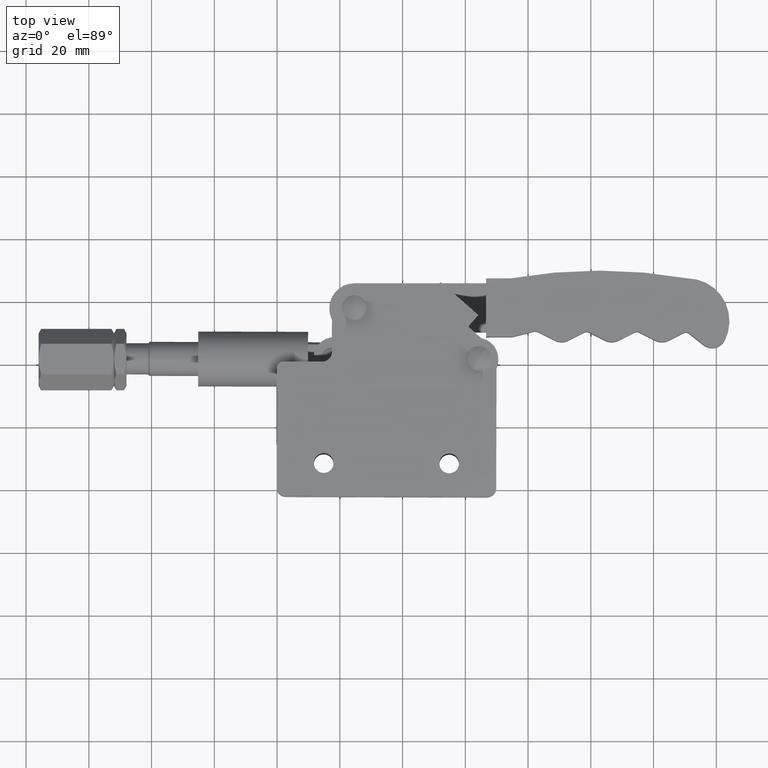
[diagram: clean part render]
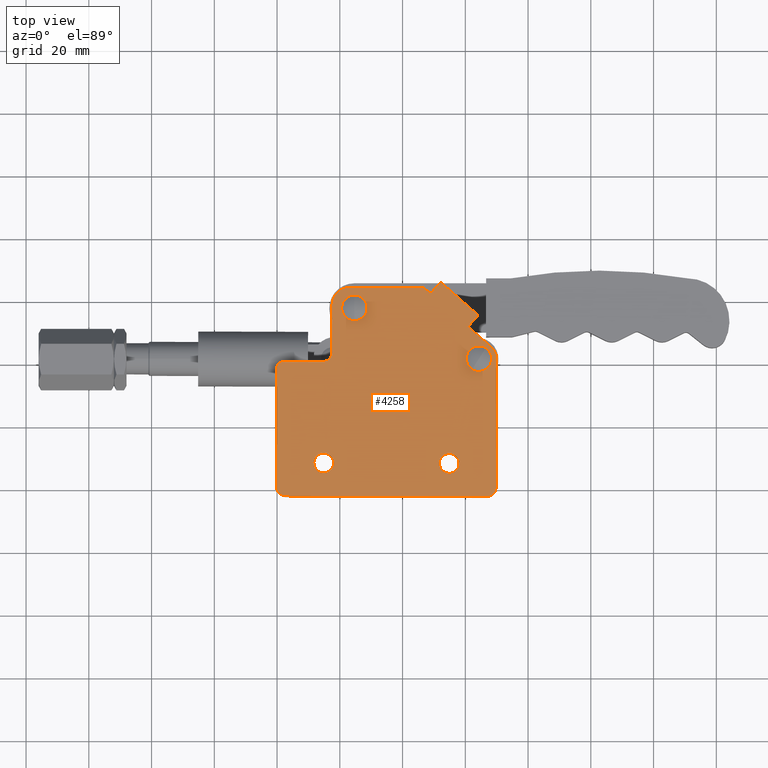
[diagram: same view with one face highlighted and labeled with its STEP entity id]
A machine part, top view. The second image highlights one B-rep face of the part: STEP entity #4258.
In plain terms, the highlighted planar face has unit normal (0, 0, 1).
Its self-contained STEP definition (entity closure, byte-faithful):
#20 = CARTESIAN_POINT ( 'NONE',  ( -1.734723475976807100E-015, 18.79999999999999700, 0.0000000000000000000 ) ) ;
#31 = CARTESIAN_POINT ( 'NONE',  ( 62.20786473797455300, 18.47647213071635300, 4.336808689942017700E-016 ) ) ;
#63 = CARTESIAN_POINT ( 'NONE',  ( 66.99999999999998600, -19.00000000000001400, 0.0000000000000000000 ) ) ;
#64 = VERTEX_POINT ( 'NONE', #3802 ) ;
#107 = EDGE_CURVE ( 'NONE', #64, #3820, #6832, .T. ) ;
#133 = CARTESIAN_POINT ( 'NONE',  ( 24.63999999999999300, 37.99999999999998600, -1.734723475976807100E-015 ) ) ;
#197 = DIRECTION ( 'NONE',  ( 1.000000000000000000, 0.0000000000000000000, 0.0000000000000000000 ) ) ;
#213 = CIRCLE ( 'NONE', #1232, 3.000000000000002700 ) ;
#302 = VERTEX_POINT ( 'NONE', #4037 ) ;
#318 = CARTESIAN_POINT ( 'NONE',  ( 24.63999999999999300, 33.93675006921797900, -2.168404344971008900E-015 ) ) ;
#343 = DIRECTION ( 'NONE',  ( -1.000000000000000000, -0.0000000000000000000, -0.0000000000000000000 ) ) ;
#352 = CARTESIAN_POINT ( 'NONE',  ( 17.49999999999998900, 38.99999999999998600, 0.0000000000000000000 ) ) ;
#445 = VECTOR ( 'NONE', #5891, 1000.000000000000000 ) ;
#452 = AXIS2_PLACEMENT_3D ( 'NONE', #648, #4709, #3450 ) ;
#470 = DIRECTION ( 'NONE',  ( -1.000000000000000000, -2.927803334981952900E-016, -0.0000000000000000000 ) ) ;
#489 = CARTESIAN_POINT ( 'NONE',  ( 51.84999999999999400, -11.50000000000001200, 0.0000000000000000000 ) ) ;
#526 = EDGE_CURVE ( 'NONE', #7168, #6061, #3278, .T. ) ;
#542 = DIRECTION ( 'NONE',  ( -0.0000000000000000000, -0.0000000000000000000, -1.000000000000000000 ) ) ;
#543 = EDGE_LOOP ( 'NONE', ( #3198, #7378 ) ) ;
#586 = DIRECTION ( 'NONE',  ( 1.000000000000000000, 0.0000000000000000000, 0.0000000000000000000 ) ) ;
#621 = VECTOR ( 'NONE', #2298, 999.9999999999998900 ) ;
#648 = CARTESIAN_POINT ( 'NONE',  ( 48.80622502360355200, 43.32542942836960300, 0.0000000000000000000 ) ) ;
#655 = ORIENTED_EDGE ( 'NONE', *, *, #1405, .T. ) ;
#667 = AXIS2_PLACEMENT_3D ( 'NONE', #4715, #4763, #7841 ) ;
#691 = DIRECTION ( 'NONE',  ( 0.0000000000000000000, 0.0000000000000000000, 1.000000000000000000 ) ) ;
#722 = CARTESIAN_POINT ( 'NONE',  ( 46.69999999999998900, 44.50000000000000000, 0.0000000000000000000 ) ) ;
#762 = DIRECTION ( 'NONE',  ( 0.0000000000000000000, 0.0000000000000000000, 1.000000000000000000 ) ) ;
#777 = DIRECTION ( 'NONE',  ( 0.0000000000000000000, 0.0000000000000000000, 1.000000000000000000 ) ) ;
#780 = VERTEX_POINT ( 'NONE', #5530 ) ;
#823 = ORIENTED_EDGE ( 'NONE', *, *, #4450, .T. ) ;
#874 = ORIENTED_EDGE ( 'NONE', *, *, #4194, .F. ) ;
#879 = DIRECTION ( 'NONE',  ( 1.000000000000000000, 0.0000000000000000000, 0.0000000000000000000 ) ) ;
#890 = EDGE_CURVE ( 'NONE', #5283, #6505, #5570, .T. ) ;
#899 = DIRECTION ( 'NONE',  ( 0.8425590174377353100, -0.5386040309302909700, 0.0000000000000000000 ) ) ;
#924 = CARTESIAN_POINT ( 'NONE',  ( 46.69999999999998900, 44.50000000000000000, 0.0000000000000000000 ) ) ;
#966 = EDGE_LOOP ( 'NONE', ( #1512, #3796 ) ) ;
#973 = AXIS2_PLACEMENT_3D ( 'NONE', #4684, #1977, #586 ) ;
#985 = AXIS2_PLACEMENT_3D ( 'NONE', #3337, #2158, #879 ) ;
#1042 = CIRCLE ( 'NONE', #7116, 4.063249930782014900 ) ;
#1140 = AXIS2_PLACEMENT_3D ( 'NONE', #5013, #762, #4302 ) ;
#1157 = VERTEX_POINT ( 'NONE', #4769 ) ;
#1232 = AXIS2_PLACEMENT_3D ( 'NONE', #63, #2224, #3428 ) ;
#1280 = DIRECTION ( 'NONE',  ( 0.0000000000000000000, 0.0000000000000000000, 1.000000000000000000 ) ) ;
#1338 = ORIENTED_EDGE ( 'NONE', *, *, #2580, .T. ) ;
#1379 = DIRECTION ( 'NONE',  ( 1.000000000000000000, 0.0000000000000000000, 0.0000000000000000000 ) ) ;
#1402 = AXIS2_PLACEMENT_3D ( 'NONE', #4083, #6500, #2451 ) ;
#1405 = EDGE_CURVE ( 'NONE', #4427, #7693, #2792, .T. ) ;
#1428 = LINE ( 'NONE', #2267, #1950 ) ;
#1483 = FACE_BOUND ( 'NONE', #4129, .T. ) ;
#1512 = ORIENTED_EDGE ( 'NONE', *, *, #5912, .F. ) ;
#1527 = CIRCLE ( 'NONE', #985, 3.149999999999999900 ) ;
#1548 = VERTEX_POINT ( 'NONE', #3971 ) ;
#1568 = ORIENTED_EDGE ( 'NONE', *, *, #7036, .T. ) ;
#1675 = CARTESIAN_POINT ( 'NONE',  ( 61.61716502681409900, 32.15044172460058300, 0.0000000000000000000 ) ) ;
#1697 = DIRECTION ( 'NONE',  ( 1.000000000000000000, 0.0000000000000000000, 0.0000000000000000000 ) ) ;
#1704 = DIRECTION ( 'NONE',  ( 1.901001663121262300E-015, 1.000000000000000000, -0.0000000000000000000 ) ) ;
#1740 = ORIENTED_EDGE ( 'NONE', *, *, #2402, .T. ) ;
#1780 = CARTESIAN_POINT ( 'NONE',  ( 66.99999999999998600, -22.00000000000001800, 0.0000000000000000000 ) ) ;
#1901 = EDGE_CURVE ( 'NONE', #3342, #3641, #4054, .T. ) ;
#1930 = DIRECTION ( 'NONE',  ( 1.000000000000000000, -1.084202172485504700E-016, 0.0000000000000000000 ) ) ;
#1941 = CIRCLE ( 'NONE', #2630, 4.063249930782008700 ) ;
#1950 = VECTOR ( 'NONE', #5372, 1000.000000000000000 ) ;
#1977 = DIRECTION ( 'NONE',  ( -0.0000000000000000000, -0.0000000000000000000, -1.000000000000000000 ) ) ;
#1997 = AXIS2_PLACEMENT_3D ( 'NONE', #133, #3130, #7645 ) ;
#2003 = CARTESIAN_POINT ( 'NONE',  ( 22.99999999999999300, 44.49999999999999300, 0.0000000000000000000 ) ) ;
#2009 = ORIENTED_EDGE ( 'NONE', *, *, #2697, .T. ) ;
#2084 = VECTOR ( 'NONE', #5675, 1000.000000000000100 ) ;
#2091 = ORIENTED_EDGE ( 'NONE', *, *, #6928, .F. ) ;
#2158 = DIRECTION ( 'NONE',  ( 0.0000000000000000000, 0.0000000000000000000, 1.000000000000000000 ) ) ;
#2164 = DIRECTION ( 'NONE',  ( 0.0000000000000000000, 0.0000000000000000000, 1.000000000000000000 ) ) ;
#2190 = ORIENTED_EDGE ( 'NONE', *, *, #6625, .T. ) ;
#2224 = DIRECTION ( 'NONE',  ( 0.0000000000000000000, 0.0000000000000000000, 1.000000000000000000 ) ) ;
#2229 = VERTEX_POINT ( 'NONE', #31 ) ;
#2235 = VECTOR ( 'NONE', #1930, 1000.000000000000000 ) ;
#2267 = CARTESIAN_POINT ( 'NONE',  ( -1.734723475976807100E-015, 18.79999999999999700, 0.0000000000000000000 ) ) ;
#2279 = CIRCLE ( 'NONE', #4982, 2.999999999999997300 ) ;
#2286 = CARTESIAN_POINT ( 'NONE',  ( 68.28687622897049900, 25.66856761897230400, 0.0000000000000000000 ) ) ;
#2298 = DIRECTION ( 'NONE',  ( -0.7535633923016396000, 0.6573752457940937900, -0.0000000000000000000 ) ) ;
#2312 = CARTESIAN_POINT ( 'NONE',  ( 49.18348598648469000, 42.99729200915935900, 0.0000000000000000000 ) ) ;
#2349 = VECTOR ( 'NONE', #1704, 1000.000000000000000 ) ;
#2356 = CARTESIAN_POINT ( 'NONE',  ( 14.99999999999999600, -11.50000000000001100, 0.0000000000000000000 ) ) ;
#2402 = EDGE_CURVE ( 'NONE', #5458, #5283, #5349, .T. ) ;
#2451 = DIRECTION ( 'NONE',  ( 0.8425590174377353100, -0.5386040309302909700, 0.0000000000000000000 ) ) ;
#2469 = DIRECTION ( 'NONE',  ( 0.0000000000000000000, 0.0000000000000000000, 1.000000000000000000 ) ) ;
#2566 = CIRCLE ( 'NONE', #1402, 4.063249930782014900 ) ;
#2572 = AXIS2_PLACEMENT_3D ( 'NONE', #7734, #2164, #3014 ) ;
#2580 = EDGE_CURVE ( 'NONE', #6061, #302, #6283, .T. ) ;
#2630 = AXIS2_PLACEMENT_3D ( 'NONE', #7625, #777, #3559 ) ;
#2637 = ORIENTED_EDGE ( 'NONE', *, *, #2664, .F. ) ;
#2638 = CARTESIAN_POINT ( 'NONE',  ( 52.07119711267320400, 46.31684512787461500, 0.0000000000000000000 ) ) ;
#2664 = EDGE_CURVE ( 'NONE', #780, #2229, #1042, .T. ) ;
#2672 = LINE ( 'NONE', #2638, #621 ) ;
#2697 = EDGE_CURVE ( 'NONE', #4714, #5304, #213, .T. ) ;
#2718 = CARTESIAN_POINT ( 'NONE',  ( 61.23992695308214000, 32.47860545770803500, 0.0000000000000000000 ) ) ;
#2774 = CARTESIAN_POINT ( 'NONE',  ( 24.63999999999999300, 42.06324993078199300, -2.168404344971008900E-015 ) ) ;
#2792 = CIRCLE ( 'NONE', #1140, 5.500000000000005300 ) ;
#2806 = ORIENTED_EDGE ( 'NONE', *, *, #3974, .T. ) ;
#2809 = EDGE_CURVE ( 'NONE', #302, #5022, #4101, .T. ) ;
#2812 = VERTEX_POINT ( 'NONE', #3195 ) ;
#2919 = CARTESIAN_POINT ( 'NONE',  ( 2.000000000000000000, 20.80000000000000100, 0.0000000000000000000 ) ) ;
#2936 = CARTESIAN_POINT ( 'NONE',  ( 54.99999999999999300, -11.50000000000001200, 0.0000000000000000000 ) ) ;
#3014 = DIRECTION ( 'NONE',  ( 1.000000000000000000, 0.0000000000000000000, 0.0000000000000000000 ) ) ;
#3026 = PLANE ( 'NONE',  #452 ) ;
#3038 = FACE_BOUND ( 'NONE', #966, .T. ) ;
#3072 = ORIENTED_EDGE ( 'NONE', *, *, #2809, .T. ) ;
#3121 = FACE_OUTER_BOUND ( 'NONE', #4000, .T. ) ;
#3130 = DIRECTION ( 'NONE',  ( 0.0000000000000000000, 0.0000000000000000000, 1.000000000000000000 ) ) ;
#3195 = CARTESIAN_POINT ( 'NONE',  ( 58.14999999999999100, -11.50000000000001200, 0.0000000000000000000 ) ) ;
#3196 = ORIENTED_EDGE ( 'NONE', *, *, #3879, .T. ) ;
#3198 = ORIENTED_EDGE ( 'NONE', *, *, #3516, .F. ) ;
#3229 = ORIENTED_EDGE ( 'NONE', *, *, #4756, .T. ) ;
#3234 = ORIENTED_EDGE ( 'NONE', *, *, #1901, .T. ) ;
#3278 = CIRCLE ( 'NONE', #667, 5.000000000000004400 ) ;
#3285 = CARTESIAN_POINT ( 'NONE',  ( 14.49999999999998800, 20.80000000000000100, 0.0000000000000000000 ) ) ;
#3337 = CARTESIAN_POINT ( 'NONE',  ( 54.99999999999999300, -11.50000000000001200, 0.0000000000000000000 ) ) ;
#3342 = VERTEX_POINT ( 'NONE', #6458 ) ;
#3428 = DIRECTION ( 'NONE',  ( 1.000000000000000000, 0.0000000000000000000, 0.0000000000000000000 ) ) ;
#3450 = DIRECTION ( 'NONE',  ( 1.000000000000000000, 0.0000000000000000000, -0.0000000000000000000 ) ) ;
#3476 = CARTESIAN_POINT ( 'NONE',  ( 70.00000000000002800, 21.90075065746412300, 0.0000000000000000000 ) ) ;
#3516 = EDGE_CURVE ( 'NONE', #4010, #5616, #7305, .T. ) ;
#3559 = DIRECTION ( 'NONE',  ( 1.000000000000000000, 0.0000000000000000000, 0.0000000000000000000 ) ) ;
#3579 = CARTESIAN_POINT ( 'NONE',  ( 17.49999999999998900, 23.80000000000000100, 0.0000000000000000000 ) ) ;
#3600 = CARTESIAN_POINT ( 'NONE',  ( 69.99999999999998600, -19.00000000000001400, 0.0000000000000000000 ) ) ;
#3627 = CARTESIAN_POINT ( 'NONE',  ( 11.84999999999999600, -11.50000000000001100, 0.0000000000000000000 ) ) ;
#3641 = VERTEX_POINT ( 'NONE', #722 ) ;
#3778 = VECTOR ( 'NONE', #5768, 1000.000000000000000 ) ;
#3796 = ORIENTED_EDGE ( 'NONE', *, *, #3896, .F. ) ;
#3802 = CARTESIAN_POINT ( 'NONE',  ( 52.07119711267320400, 46.31684512787461500, 0.0000000000000000000 ) ) ;
#3820 = VERTEX_POINT ( 'NONE', #5047 ) ;
#3874 = EDGE_CURVE ( 'NONE', #5022, #7221, #7314, .T. ) ;
#3879 = EDGE_CURVE ( 'NONE', #3641, #4427, #5668, .T. ) ;
#3882 = CARTESIAN_POINT ( 'NONE',  ( 2.000000000000000000, 20.80000000000000100, 0.0000000000000000000 ) ) ;
#3896 = EDGE_CURVE ( 'NONE', #6695, #1548, #4285, .T. ) ;
#3971 = CARTESIAN_POINT ( 'NONE',  ( 18.14999999999999500, -11.50000000000001100, 0.0000000000000000000 ) ) ;
#3974 = EDGE_CURVE ( 'NONE', #1157, #6070, #2279, .T. ) ;
#4000 = EDGE_LOOP ( 'NONE', ( #7755, #7648, #5005, #823, #3234, #3196, #655, #2190, #1740, #6618, #3229, #1568, #2806, #7373, #2009, #7558, #4250, #1338, #3072 ) ) ;
#4001 = LINE ( 'NONE', #7348, #2235 ) ;
#4010 = VERTEX_POINT ( 'NONE', #2774 ) ;
#4037 = CARTESIAN_POINT ( 'NONE',  ( 61.28844937279576000, 31.77368448339173300, 0.0000000000000000000 ) ) ;
#4054 = LINE ( 'NONE', #924, #445 ) ;
#4083 = CARTESIAN_POINT ( 'NONE',  ( 64.39634752937097100, 21.89999999999998400, 0.0000000000000000000 ) ) ;
#4101 = CIRCLE ( 'NONE', #5342, 0.5000000000000143200 ) ;
#4129 = EDGE_LOOP ( 'NONE', ( #2637, #2091 ) ) ;
#4194 = EDGE_CURVE ( 'NONE', #6952, #2812, #1527, .T. ) ;
#4208 = EDGE_CURVE ( 'NONE', #5616, #4010, #1941, .T. ) ;
#4250 = ORIENTED_EDGE ( 'NONE', *, *, #526, .T. ) ;
#4258 = ADVANCED_FACE ( 'NONE', ( #6181, #3038, #5496, #1483, #3121 ), #3026, .T. ) ;
#4270 = DIRECTION ( 'NONE',  ( -0.6563266565067464900, -0.7544768518375332100, -0.0000000000000000000 ) ) ;
#4285 = CIRCLE ( 'NONE', #6102, 3.149999999999999900 ) ;
#4302 = DIRECTION ( 'NONE',  ( 1.000000000000000000, 0.0000000000000000000, 0.0000000000000000000 ) ) ;
#4389 = DIRECTION ( 'NONE',  ( 0.0000000000000000000, 0.0000000000000000000, 1.000000000000000000 ) ) ;
#4427 = VERTEX_POINT ( 'NONE', #2003 ) ;
#4441 = DIRECTION ( 'NONE',  ( 0.0000000000000000000, -1.000000000000000000, 0.0000000000000000000 ) ) ;
#4450 = EDGE_CURVE ( 'NONE', #3820, #3342, #5245, .T. ) ;
#4558 = AXIS2_PLACEMENT_3D ( 'NONE', #2936, #691, #197 ) ;
#4684 = CARTESIAN_POINT ( 'NONE',  ( 14.49999999999998800, 23.80000000000000100, 0.0000000000000000000 ) ) ;
#4686 = CARTESIAN_POINT ( 'NONE',  ( 61.28844937279576000, 31.77368448339173300, 0.0000000000000000000 ) ) ;
#4709 = DIRECTION ( 'NONE',  ( 0.0000000000000000000, 0.0000000000000000000, 1.000000000000000000 ) ) ;
#4714 = VERTEX_POINT ( 'NONE', #1780 ) ;
#4715 = CARTESIAN_POINT ( 'NONE',  ( 65.00000000000001400, 21.90075065746413000, 0.0000000000000000000 ) ) ;
#4756 = EDGE_CURVE ( 'NONE', #6505, #7278, #5743, .T. ) ;
#4757 = CARTESIAN_POINT ( 'NONE',  ( 64.39634752937097100, 21.89999999999998400, 0.0000000000000000000 ) ) ;
#4763 = DIRECTION ( 'NONE',  ( 0.0000000000000000000, 0.0000000000000000000, 1.000000000000000000 ) ) ;
#4769 = CARTESIAN_POINT ( 'NONE',  ( 2.553132332470925500E-015, -19.00000000000001400, 0.0000000000000000000 ) ) ;
#4861 = CARTESIAN_POINT ( 'NONE',  ( 64.12822304832896200, 35.79883102452387800, 0.0000000000000000000 ) ) ;
#4956 = AXIS2_PLACEMENT_3D ( 'NONE', #2356, #2469, #6183 ) ;
#4982 = AXIS2_PLACEMENT_3D ( 'NONE', #5787, #5845, #5714 ) ;
#5005 = ORIENTED_EDGE ( 'NONE', *, *, #107, .T. ) ;
#5013 = CARTESIAN_POINT ( 'NONE',  ( 22.99999999999999300, 38.99999999999998600, 0.0000000000000000000 ) ) ;
#5022 = VERTEX_POINT ( 'NONE', #2718 ) ;
#5036 = VECTOR ( 'NONE', #4270, 1000.000000000000000 ) ;
#5047 = CARTESIAN_POINT ( 'NONE',  ( 49.18348598648469000, 42.99729200915935900, 0.0000000000000000000 ) ) ;
#5095 = LINE ( 'NONE', #3476, #2349 ) ;
#5245 = CIRCLE ( 'NONE', #6959, 0.4999999999999588100 ) ;
#5283 = VERTEX_POINT ( 'NONE', #3285 ) ;
#5304 = VERTEX_POINT ( 'NONE', #3600 ) ;
#5342 = AXIS2_PLACEMENT_3D ( 'NONE', #1675, #542, #6452 ) ;
#5349 = CIRCLE ( 'NONE', #973, 3.000000000000000900 ) ;
#5372 = DIRECTION ( 'NONE',  ( 9.227252531791530300E-017, -1.000000000000000000, 0.0000000000000000000 ) ) ;
#5402 = CARTESIAN_POINT ( 'NONE',  ( 17.49999999999998900, 38.99999999999998600, 0.0000000000000000000 ) ) ;
#5407 = CIRCLE ( 'NONE', #4956, 3.149999999999999900 ) ;
#5458 = VERTEX_POINT ( 'NONE', #3579 ) ;
#5496 = FACE_BOUND ( 'NONE', #543, .T. ) ;
#5530 = CARTESIAN_POINT ( 'NONE',  ( 66.58483032076738100, 25.32352786928362300, 4.336808689942017700E-016 ) ) ;
#5547 = VECTOR ( 'NONE', #343, 1000.000000000000000 ) ;
#5570 = LINE ( 'NONE', #2919, #5547 ) ;
#5616 = VERTEX_POINT ( 'NONE', #318 ) ;
#5668 = LINE ( 'NONE', #7797, #5772 ) ;
#5675 = DIRECTION ( 'NONE',  ( -0.7535633923016400400, 0.6573752457940932300, -0.0000000000000000000 ) ) ;
#5696 = CARTESIAN_POINT ( 'NONE',  ( 70.00000000000001400, 21.90075065746411900, 0.0000000000000000000 ) ) ;
#5698 = CARTESIAN_POINT ( 'NONE',  ( 48.80622502360355200, 43.32542942836960300, 0.0000000000000000000 ) ) ;
#5714 = DIRECTION ( 'NONE',  ( 1.000000000000000000, 0.0000000000000000000, 0.0000000000000000000 ) ) ;
#5743 = CIRCLE ( 'NONE', #2572, 2.000000000000001800 ) ;
#5768 = DIRECTION ( 'NONE',  ( 0.6563266565067466000, 0.7544768518375332100, 0.0000000000000000000 ) ) ;
#5772 = VECTOR ( 'NONE', #470, 1000.000000000000000 ) ;
#5787 = CARTESIAN_POINT ( 'NONE',  ( 3.000000000000002700, -19.00000000000001400, 0.0000000000000000000 ) ) ;
#5845 = DIRECTION ( 'NONE',  ( 0.0000000000000000000, 0.0000000000000000000, 1.000000000000000000 ) ) ;
#5891 = DIRECTION ( 'NONE',  ( -0.7535633923016373800, 0.6573752457940963400, -0.0000000000000000000 ) ) ;
#5912 = EDGE_CURVE ( 'NONE', #1548, #6695, #5407, .T. ) ;
#6061 = VERTEX_POINT ( 'NONE', #2286 ) ;
#6070 = VERTEX_POINT ( 'NONE', #6098 ) ;
#6098 = CARTESIAN_POINT ( 'NONE',  ( 3.000000000000002200, -22.00000000000001400, 0.0000000000000000000 ) ) ;
#6102 = AXIS2_PLACEMENT_3D ( 'NONE', #6550, #1280, #1697 ) ;
#6181 = FACE_BOUND ( 'NONE', #6478, .T. ) ;
#6183 = DIRECTION ( 'NONE',  ( 1.000000000000000000, 0.0000000000000000000, 0.0000000000000000000 ) ) ;
#6283 = LINE ( 'NONE', #4686, #2084 ) ;
#6320 = LINE ( 'NONE', #5402, #6793 ) ;
#6452 = DIRECTION ( 'NONE',  ( 1.000000000000000000, 0.0000000000000000000, 0.0000000000000000000 ) ) ;
#6458 = CARTESIAN_POINT ( 'NONE',  ( 48.46049205446850300, 42.96422489620947300, 0.0000000000000000000 ) ) ;
#6478 = EDGE_LOOP ( 'NONE', ( #7372, #874 ) ) ;
#6485 = EDGE_CURVE ( 'NONE', #5304, #7168, #5095, .T. ) ;
#6500 = DIRECTION ( 'NONE',  ( 0.0000000000000000000, 0.0000000000000000000, 1.000000000000000000 ) ) ;
#6505 = VERTEX_POINT ( 'NONE', #3882 ) ;
#6550 = CARTESIAN_POINT ( 'NONE',  ( 14.99999999999999600, -11.50000000000001100, 0.0000000000000000000 ) ) ;
#6618 = ORIENTED_EDGE ( 'NONE', *, *, #890, .T. ) ;
#6625 = EDGE_CURVE ( 'NONE', #7693, #5458, #6320, .T. ) ;
#6695 = VERTEX_POINT ( 'NONE', #3627 ) ;
#6774 = DIRECTION ( 'NONE',  ( -0.0000000000000000000, -0.0000000000000000000, -1.000000000000000000 ) ) ;
#6793 = VECTOR ( 'NONE', #4441, 1000.000000000000000 ) ;
#6832 = LINE ( 'NONE', #2312, #5036 ) ;
#6867 = CIRCLE ( 'NONE', #4558, 3.149999999999999900 ) ;
#6928 = EDGE_CURVE ( 'NONE', #2229, #780, #2566, .T. ) ;
#6952 = VERTEX_POINT ( 'NONE', #489 ) ;
#6959 = AXIS2_PLACEMENT_3D ( 'NONE', #5698, #6774, #1379 ) ;
#7036 = EDGE_CURVE ( 'NONE', #7278, #1157, #1428, .T. ) ;
#7116 = AXIS2_PLACEMENT_3D ( 'NONE', #4757, #4389, #899 ) ;
#7168 = VERTEX_POINT ( 'NONE', #5696 ) ;
#7221 = VERTEX_POINT ( 'NONE', #4861 ) ;
#7278 = VERTEX_POINT ( 'NONE', #20 ) ;
#7305 = CIRCLE ( 'NONE', #1997, 4.063249930782008700 ) ;
#7314 = LINE ( 'NONE', #7370, #3778 ) ;
#7348 = CARTESIAN_POINT ( 'NONE',  ( 3.000000000000002700, -22.00000000000001100, 0.0000000000000000000 ) ) ;
#7370 = CARTESIAN_POINT ( 'NONE',  ( 61.23992695308214000, 32.47860545770803500, 0.0000000000000000000 ) ) ;
#7372 = ORIENTED_EDGE ( 'NONE', *, *, #7374, .F. ) ;
#7373 = ORIENTED_EDGE ( 'NONE', *, *, #7439, .T. ) ;
#7374 = EDGE_CURVE ( 'NONE', #2812, #6952, #6867, .T. ) ;
#7378 = ORIENTED_EDGE ( 'NONE', *, *, #4208, .F. ) ;
#7439 = EDGE_CURVE ( 'NONE', #6070, #4714, #4001, .T. ) ;
#7558 = ORIENTED_EDGE ( 'NONE', *, *, #6485, .T. ) ;
#7603 = EDGE_CURVE ( 'NONE', #7221, #64, #2672, .T. ) ;
#7625 = CARTESIAN_POINT ( 'NONE',  ( 24.63999999999999300, 37.99999999999998600, -1.734723475976807100E-015 ) ) ;
#7645 = DIRECTION ( 'NONE',  ( 1.000000000000000000, 0.0000000000000000000, 0.0000000000000000000 ) ) ;
#7648 = ORIENTED_EDGE ( 'NONE', *, *, #7603, .T. ) ;
#7693 = VERTEX_POINT ( 'NONE', #352 ) ;
#7734 = CARTESIAN_POINT ( 'NONE',  ( 2.000000000000000000, 18.79999999999999700, 0.0000000000000000000 ) ) ;
#7755 = ORIENTED_EDGE ( 'NONE', *, *, #3874, .T. ) ;
#7797 = CARTESIAN_POINT ( 'NONE',  ( 22.99999999999999300, 44.49999999999999300, 0.0000000000000000000 ) ) ;
#7841 = DIRECTION ( 'NONE',  ( 1.000000000000000000, 0.0000000000000000000, 0.0000000000000000000 ) ) ;